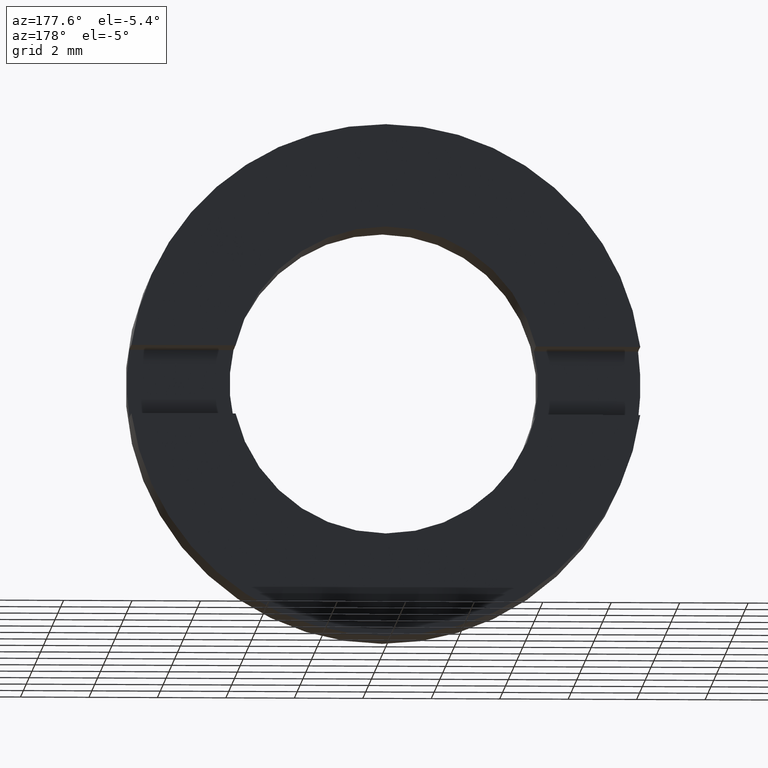
[diagram: clean part render]
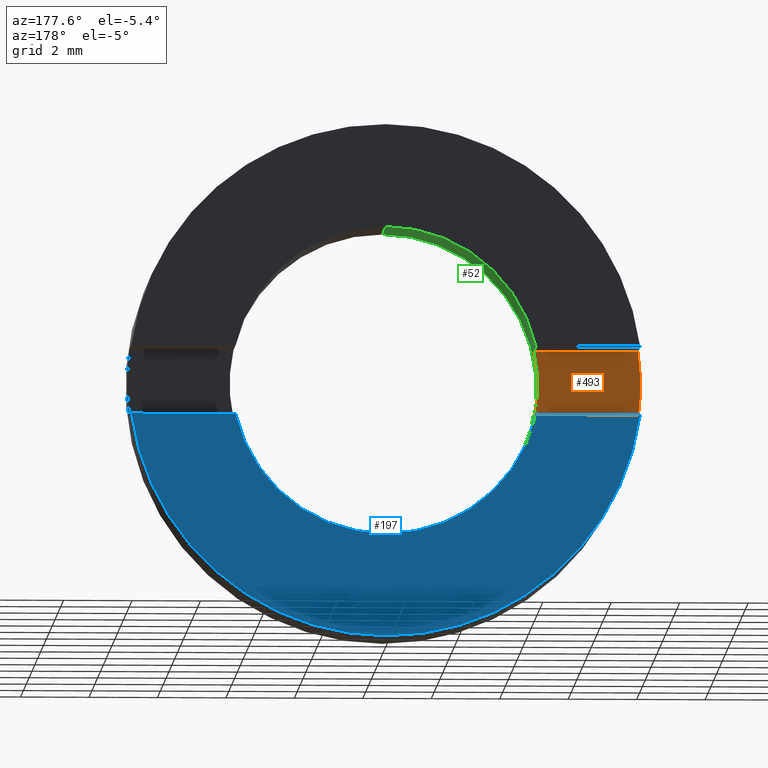
[diagram: same view with three faces highlighted in distinct colors, each labeled with its STEP entity id]
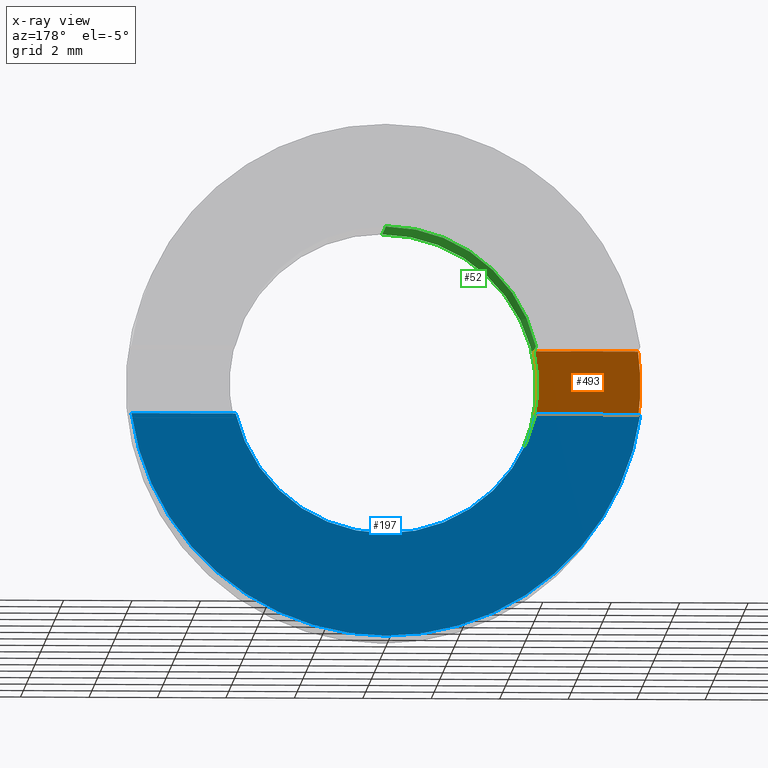
[diagram: x-ray of the same camera — body ghosted, the three highlighted faces saturated]
A machine part, auxiliary view with three faces highlighted in distinct colors.
The next image is the same camera in x-ray (body ghosted, the three faces saturated) — at least one of them is partly hidden behind the body in this view.
Their STEP definitions:

[orange] entity #493 — the highlighted planar face has unit normal (0, 1, 0).
#8 = VERTEX_POINT ( 'NONE', #528 ) ;
#12 = FACE_OUTER_BOUND ( 'NONE', #540, .T. ) ;
#57 = AXIS2_PLACEMENT_3D ( 'NONE', #245, #563, #564 ) ;
#58 = CARTESIAN_POINT ( 'NONE',  ( -26.85254027261461800, -3.464249787179431100, -1.000000000000000000 ) ) ;
#68 = ORIENTED_EDGE ( 'NONE', *, *, #100, .T. ) ;
#79 = EDGE_CURVE ( 'NONE', #457, #8, #589, .T. ) ;
#91 = EDGE_CURVE ( 'NONE', #8, #455, #527, .T. ) ;
#100 = EDGE_CURVE ( 'NONE', #319, #457, #188, .T. ) ;
#133 = DIRECTION ( 'NONE',  ( 0.0000000000000000000, 0.0000000000000000000, 1.000000000000000000 ) ) ;
#174 = CARTESIAN_POINT ( 'NONE',  ( 0.0000000000000000000, -3.464249787179428400, 0.0000000000000000000 ) ) ;
#181 = LINE ( 'NONE', #58, #409 ) ;
#188 = CIRCLE ( 'NONE', #537, 7.500000000000007100 ) ;
#245 = CARTESIAN_POINT ( 'NONE',  ( 0.0000000000000000000, -3.464249787179431100, 0.0000000000000000000 ) ) ;
#247 = ORIENTED_EDGE ( 'NONE', *, *, #332, .T. ) ;
#249 = PLANE ( 'NONE',  #57 ) ;
#305 = CARTESIAN_POINT ( 'NONE',  ( -7.433034373659258300, -3.464249787179428400, 0.9999999999999995600 ) ) ;
#319 = VERTEX_POINT ( 'NONE', #496 ) ;
#332 = EDGE_CURVE ( 'NONE', #455, #319, #181, .T. ) ;
#375 = DIRECTION ( 'NONE',  ( -1.000000000000000000, -0.0000000000000000000, -0.0000000000000000000 ) ) ;
#399 = CARTESIAN_POINT ( 'NONE',  ( -26.85254027261461800, -3.464249787179431100, 1.000000000000000000 ) ) ;
#409 = VECTOR ( 'NONE', #375, 1000.000000000000000 ) ;
#423 = CARTESIAN_POINT ( 'NONE',  ( -4.387482193696067500, -3.464249787179428400, -0.9999999999999995600 ) ) ;
#440 = DIRECTION ( 'NONE',  ( -0.0000000000000000000, -1.000000000000000000, -0.0000000000000000000 ) ) ;
#450 = AXIS2_PLACEMENT_3D ( 'NONE', #174, #440, #133 ) ;
#455 = VERTEX_POINT ( 'NONE', #423 ) ;
#457 = VERTEX_POINT ( 'NONE', #305 ) ;
#487 = DIRECTION ( 'NONE',  ( 1.000000000000000000, 0.0000000000000000000, 0.0000000000000000000 ) ) ;
#488 = ORIENTED_EDGE ( 'NONE', *, *, #79, .T. ) ;
#493 = ADVANCED_FACE ( 'NONE', ( #12 ), #249, .T. ) ;
#496 = CARTESIAN_POINT ( 'NONE',  ( -7.433034373659258300, -3.464249787179428400, -0.9999999999999995600 ) ) ;
#527 = CIRCLE ( 'NONE', #450, 4.500000000000007100 ) ;
#528 = CARTESIAN_POINT ( 'NONE',  ( -4.387482193696067500, -3.464249787179428400, 0.9999999999999995600 ) ) ;
#531 = DIRECTION ( 'NONE',  ( 0.0000000000000000000, 0.0000000000000000000, 1.000000000000000000 ) ) ;
#537 = AXIS2_PLACEMENT_3D ( 'NONE', #541, #578, #531 ) ;
#540 = EDGE_LOOP ( 'NONE', ( #68, #488, #567, #247 ) ) ;
#541 = CARTESIAN_POINT ( 'NONE',  ( 0.0000000000000000000, -3.464249787179428400, 0.0000000000000000000 ) ) ;
#547 = VECTOR ( 'NONE', #487, 1000.000000000000000 ) ;
#563 = DIRECTION ( 'NONE',  ( 0.0000000000000000000, 1.000000000000000000, 0.0000000000000000000 ) ) ;
#564 = DIRECTION ( 'NONE',  ( 0.0000000000000000000, -0.0000000000000000000, 1.000000000000000000 ) ) ;
#567 = ORIENTED_EDGE ( 'NONE', *, *, #91, .T. ) ;
#578 = DIRECTION ( 'NONE',  ( 0.0000000000000000000, 1.000000000000000000, 0.0000000000000000000 ) ) ;
#589 = LINE ( 'NONE', #399, #547 ) ;

[blue] entity #197 — the highlighted planar face has unit normal (0, -1, 0).
#2 = VERTEX_POINT ( 'NONE', #114 ) ;
#18 = DIRECTION ( 'NONE',  ( -1.000000000000000000, -0.0000000000000000000, -0.0000000000000000000 ) ) ;
#21 = CARTESIAN_POINT ( 'NONE',  ( 7.433034373659247700, -1.964249787179430900, -1.000000000000000000 ) ) ;
#23 = ORIENTED_EDGE ( 'NONE', *, *, #304, .F. ) ;
#25 = DIRECTION ( 'NONE',  ( -0.0000000000000000000, 1.000000000000000000, -0.0000000000000000000 ) ) ;
#31 = EDGE_CURVE ( 'NONE', #481, #2, #159, .T. ) ;
#38 = DIRECTION ( 'NONE',  ( 0.0000000000000000000, 0.0000000000000000000, 1.000000000000000000 ) ) ;
#45 = DIRECTION ( 'NONE',  ( 0.0000000000000000000, -1.000000000000000000, 0.0000000000000000000 ) ) ;
#92 = DIRECTION ( 'NONE',  ( -0.0000000000000000000, 1.000000000000000000, -0.0000000000000000000 ) ) ;
#95 = ORIENTED_EDGE ( 'NONE', *, *, #237, .F. ) ;
#98 = VERTEX_POINT ( 'NONE', #484 ) ;
#114 = CARTESIAN_POINT ( 'NONE',  ( 9.184850993605157800E-016, -1.964249787179434000, -7.500000000000007100 ) ) ;
#131 = CARTESIAN_POINT ( 'NONE',  ( 0.0000000000000000000, -1.964249787179434000, 0.0000000000000000000 ) ) ;
#135 = EDGE_LOOP ( 'NONE', ( #402, #214, #474, #95, #166, #23 ) ) ;
#137 = DIRECTION ( 'NONE',  ( 0.0000000000000000000, -0.0000000000000000000, -1.000000000000000000 ) ) ;
#142 = AXIS2_PLACEMENT_3D ( 'NONE', #410, #45, #137 ) ;
#144 = CARTESIAN_POINT ( 'NONE',  ( 0.0000000000000000000, -1.964249787179434000, 0.0000000000000000000 ) ) ;
#146 = LINE ( 'NONE', #337, #582 ) ;
#151 = AXIS2_PLACEMENT_3D ( 'NONE', #131, #536, #38 ) ;
#159 = CIRCLE ( 'NONE', #424, 7.500000000000007100 ) ;
#161 = CARTESIAN_POINT ( 'NONE',  ( 0.0000000000000000000, -1.964249787179434000, 0.0000000000000000000 ) ) ;
#166 = ORIENTED_EDGE ( 'NONE', *, *, #179, .F. ) ;
#179 = EDGE_CURVE ( 'NONE', #444, #98, #571, .T. ) ;
#182 = DIRECTION ( 'NONE',  ( -1.000000000000000000, -0.0000000000000000000, -0.0000000000000000000 ) ) ;
#183 = AXIS2_PLACEMENT_3D ( 'NONE', #144, #198, #506 ) ;
#197 = ADVANCED_FACE ( 'NONE', ( #548 ), #361, .F. ) ;
#198 = DIRECTION ( 'NONE',  ( -0.0000000000000000000, 1.000000000000000000, -0.0000000000000000000 ) ) ;
#214 = ORIENTED_EDGE ( 'NONE', *, *, #362, .T. ) ;
#231 = CARTESIAN_POINT ( 'NONE',  ( -4.387482193696067500, -1.964249787179434000, -0.9999999999999995600 ) ) ;
#233 = DIRECTION ( 'NONE',  ( 0.0000000000000000000, 0.0000000000000000000, 1.000000000000000000 ) ) ;
#237 = EDGE_CURVE ( 'NONE', #98, #285, #303, .T. ) ;
#250 = DIRECTION ( 'NONE',  ( 0.0000000000000000000, 0.0000000000000000000, 1.000000000000000000 ) ) ;
#285 = VERTEX_POINT ( 'NONE', #231 ) ;
#296 = CARTESIAN_POINT ( 'NONE',  ( 4.387482193696067500, -1.964249787179434000, -0.9999999999999995600 ) ) ;
#303 = CIRCLE ( 'NONE', #480, 4.500000000000007100 ) ;
#304 = EDGE_CURVE ( 'NONE', #481, #444, #347, .T. ) ;
#328 = CARTESIAN_POINT ( 'NONE',  ( -26.85254027261461800, -1.964249787179430900, -1.000000000000000000 ) ) ;
#337 = CARTESIAN_POINT ( 'NONE',  ( -26.85254027261461800, -1.964249787179430900, -1.000000000000000000 ) ) ;
#346 = VERTEX_POINT ( 'NONE', #562 ) ;
#347 = LINE ( 'NONE', #328, #463 ) ;
#361 = PLANE ( 'NONE',  #142 ) ;
#362 = EDGE_CURVE ( 'NONE', #2, #346, #521, .T. ) ;
#402 = ORIENTED_EDGE ( 'NONE', *, *, #31, .T. ) ;
#410 = CARTESIAN_POINT ( 'NONE',  ( 4.500000000000007100, -1.964249787179430900, 0.0000000000000000000 ) ) ;
#424 = AXIS2_PLACEMENT_3D ( 'NONE', #161, #25, #250 ) ;
#444 = VERTEX_POINT ( 'NONE', #296 ) ;
#454 = CARTESIAN_POINT ( 'NONE',  ( 0.0000000000000000000, -1.964249787179434000, 0.0000000000000000000 ) ) ;
#463 = VECTOR ( 'NONE', #182, 1000.000000000000000 ) ;
#474 = ORIENTED_EDGE ( 'NONE', *, *, #525, .F. ) ;
#480 = AXIS2_PLACEMENT_3D ( 'NONE', #454, #92, #233 ) ;
#481 = VERTEX_POINT ( 'NONE', #21 ) ;
#484 = CARTESIAN_POINT ( 'NONE',  ( 5.510910596163098400E-016, -1.964249787179434000, -4.500000000000007100 ) ) ;
#506 = DIRECTION ( 'NONE',  ( 0.0000000000000000000, 0.0000000000000000000, 1.000000000000000000 ) ) ;
#521 = CIRCLE ( 'NONE', #183, 7.500000000000007100 ) ;
#525 = EDGE_CURVE ( 'NONE', #285, #346, #146, .T. ) ;
#536 = DIRECTION ( 'NONE',  ( -0.0000000000000000000, 1.000000000000000000, -0.0000000000000000000 ) ) ;
#548 = FACE_OUTER_BOUND ( 'NONE', #135, .T. ) ;
#562 = CARTESIAN_POINT ( 'NONE',  ( -7.433034373659268100, -1.964249787179430900, -1.000000000000000000 ) ) ;
#571 = CIRCLE ( 'NONE', #151, 4.500000000000007100 ) ;
#582 = VECTOR ( 'NONE', #18, 1000.000000000000000 ) ;

[green] entity #52 — the highlighted cylindrical surface (partial cylindrical patch) has radius 4.5 mm, axis along (-0, 1, -0).
#8 = VERTEX_POINT ( 'NONE', #528 ) ;
#11 = VERTEX_POINT ( 'NONE', #164 ) ;
#28 = EDGE_CURVE ( 'NONE', #11, #193, #283, .T. ) ;
#30 = DIRECTION ( 'NONE',  ( -0.0000000000000000000, 1.000000000000000000, -0.0000000000000000000 ) ) ;
#39 = AXIS2_PLACEMENT_3D ( 'NONE', #365, #49, #279 ) ;
#49 = DIRECTION ( 'NONE',  ( -0.0000000000000000000, 1.000000000000000000, -0.0000000000000000000 ) ) ;
#52 = ADVANCED_FACE ( 'NONE', ( #105 ), #325, .F. ) ;
#63 = LINE ( 'NONE', #176, #201 ) ;
#64 = CARTESIAN_POINT ( 'NONE',  ( 5.510910596163098400E-016, -4.464249787179428900, -4.500000000000007100 ) ) ;
#77 = VECTOR ( 'NONE', #242, 1000.000000000000000 ) ;
#83 = CARTESIAN_POINT ( 'NONE',  ( 0.0000000000000000000, -1.964249787179434000, 4.500000000000007100 ) ) ;
#86 = EDGE_CURVE ( 'NONE', #8, #11, #270, .T. ) ;
#91 = EDGE_CURVE ( 'NONE', #8, #455, #527, .T. ) ;
#92 = DIRECTION ( 'NONE',  ( -0.0000000000000000000, 1.000000000000000000, -0.0000000000000000000 ) ) ;
#98 = VERTEX_POINT ( 'NONE', #484 ) ;
#102 = ORIENTED_EDGE ( 'NONE', *, *, #28, .T. ) ;
#105 = FACE_OUTER_BOUND ( 'NONE', #226, .T. ) ;
#110 = EDGE_CURVE ( 'NONE', #285, #455, #63, .T. ) ;
#120 = ORIENTED_EDGE ( 'NONE', *, *, #287, .F. ) ;
#122 = ORIENTED_EDGE ( 'NONE', *, *, #237, .T. ) ;
#133 = DIRECTION ( 'NONE',  ( 0.0000000000000000000, 0.0000000000000000000, 1.000000000000000000 ) ) ;
#138 = DIRECTION ( 'NONE',  ( -0.0000000000000000000, 1.000000000000000000, -0.0000000000000000000 ) ) ;
#156 = CARTESIAN_POINT ( 'NONE',  ( 0.0000000000000000000, 56.26084262701361600, 0.0000000000000000000 ) ) ;
#164 = CARTESIAN_POINT ( 'NONE',  ( -4.387482193696067500, -1.964249787179434000, 0.9999999999999995600 ) ) ;
#167 = VECTOR ( 'NONE', #271, 1000.000000000000000 ) ;
#174 = CARTESIAN_POINT ( 'NONE',  ( 0.0000000000000000000, -3.464249787179428400, 0.0000000000000000000 ) ) ;
#176 = CARTESIAN_POINT ( 'NONE',  ( -4.387482193696068400, 56.26084262701361600, -1.000000000000000000 ) ) ;
#177 = ORIENTED_EDGE ( 'NONE', *, *, #243, .F. ) ;
#192 = CARTESIAN_POINT ( 'NONE',  ( 5.510910596163098400E-016, 56.26084262701361600, -4.500000000000007100 ) ) ;
#193 = VERTEX_POINT ( 'NONE', #83 ) ;
#201 = VECTOR ( 'NONE', #261, 1000.000000000000000 ) ;
#226 = EDGE_LOOP ( 'NONE', ( #120, #360, #122, #494, #404, #421, #102, #177 ) ) ;
#231 = CARTESIAN_POINT ( 'NONE',  ( -4.387482193696067500, -1.964249787179434000, -0.9999999999999995600 ) ) ;
#233 = DIRECTION ( 'NONE',  ( 0.0000000000000000000, 0.0000000000000000000, 1.000000000000000000 ) ) ;
#237 = EDGE_CURVE ( 'NONE', #98, #285, #303, .T. ) ;
#242 = DIRECTION ( 'NONE',  ( -0.0000000000000000000, 1.000000000000000000, -0.0000000000000000000 ) ) ;
#243 = EDGE_CURVE ( 'NONE', #554, #193, #559, .T. ) ;
#261 = DIRECTION ( 'NONE',  ( 0.0000000000000000000, -1.000000000000000000, 0.0000000000000000000 ) ) ;
#270 = LINE ( 'NONE', #353, #167 ) ;
#271 = DIRECTION ( 'NONE',  ( -0.0000000000000000000, 1.000000000000000000, -0.0000000000000000000 ) ) ;
#278 = CARTESIAN_POINT ( 'NONE',  ( 0.0000000000000000000, 56.26084262701361600, 4.500000000000007100 ) ) ;
#279 = DIRECTION ( 'NONE',  ( 0.0000000000000000000, 0.0000000000000000000, 1.000000000000000000 ) ) ;
#283 = CIRCLE ( 'NONE', #413, 4.500000000000007100 ) ;
#285 = VERTEX_POINT ( 'NONE', #231 ) ;
#287 = EDGE_CURVE ( 'NONE', #519, #554, #405, .T. ) ;
#301 = CARTESIAN_POINT ( 'NONE',  ( 0.0000000000000000000, -1.964249787179434000, 0.0000000000000000000 ) ) ;
#303 = CIRCLE ( 'NONE', #480, 4.500000000000007100 ) ;
#307 = DIRECTION ( 'NONE',  ( -0.0000000000000000000, 1.000000000000000000, -0.0000000000000000000 ) ) ;
#325 = CYLINDRICAL_SURFACE ( 'NONE', #499, 4.500000000000007100 ) ;
#329 = EDGE_CURVE ( 'NONE', #519, #98, #436, .T. ) ;
#335 = VECTOR ( 'NONE', #138, 1000.000000000000000 ) ;
#349 = CARTESIAN_POINT ( 'NONE',  ( 0.0000000000000000000, -4.464249787179428900, 4.500000000000007100 ) ) ;
#353 = CARTESIAN_POINT ( 'NONE',  ( -4.387482193696068400, 56.26084262701361600, 1.000000000000000000 ) ) ;
#360 = ORIENTED_EDGE ( 'NONE', *, *, #329, .T. ) ;
#365 = CARTESIAN_POINT ( 'NONE',  ( 0.0000000000000000000, -4.464249787179428900, 0.0000000000000000000 ) ) ;
#404 = ORIENTED_EDGE ( 'NONE', *, *, #91, .F. ) ;
#405 = CIRCLE ( 'NONE', #39, 4.500000000000007100 ) ;
#413 = AXIS2_PLACEMENT_3D ( 'NONE', #301, #307, #518 ) ;
#421 = ORIENTED_EDGE ( 'NONE', *, *, #86, .T. ) ;
#423 = CARTESIAN_POINT ( 'NONE',  ( -4.387482193696067500, -3.464249787179428400, -0.9999999999999995600 ) ) ;
#436 = LINE ( 'NONE', #192, #77 ) ;
#440 = DIRECTION ( 'NONE',  ( -0.0000000000000000000, -1.000000000000000000, -0.0000000000000000000 ) ) ;
#450 = AXIS2_PLACEMENT_3D ( 'NONE', #174, #440, #133 ) ;
#454 = CARTESIAN_POINT ( 'NONE',  ( 0.0000000000000000000, -1.964249787179434000, 0.0000000000000000000 ) ) ;
#455 = VERTEX_POINT ( 'NONE', #423 ) ;
#480 = AXIS2_PLACEMENT_3D ( 'NONE', #454, #92, #233 ) ;
#484 = CARTESIAN_POINT ( 'NONE',  ( 5.510910596163098400E-016, -1.964249787179434000, -4.500000000000007100 ) ) ;
#494 = ORIENTED_EDGE ( 'NONE', *, *, #110, .T. ) ;
#499 = AXIS2_PLACEMENT_3D ( 'NONE', #156, #30, #568 ) ;
#518 = DIRECTION ( 'NONE',  ( 0.0000000000000000000, 0.0000000000000000000, 1.000000000000000000 ) ) ;
#519 = VERTEX_POINT ( 'NONE', #64 ) ;
#527 = CIRCLE ( 'NONE', #450, 4.500000000000007100 ) ;
#528 = CARTESIAN_POINT ( 'NONE',  ( -4.387482193696067500, -3.464249787179428400, 0.9999999999999995600 ) ) ;
#554 = VERTEX_POINT ( 'NONE', #349 ) ;
#559 = LINE ( 'NONE', #278, #335 ) ;
#568 = DIRECTION ( 'NONE',  ( 0.0000000000000000000, 0.0000000000000000000, 1.000000000000000000 ) ) ;